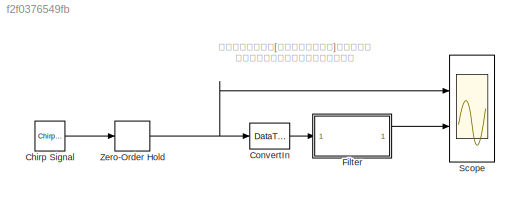
MODEL slx_f2f0376549fb
KIND model
CONFIG AbsTol = auto
CONFIG FixedStep = auto
CONFIG MaxStep = auto
CONFIG MinStep = auto
CONFIG PreLoadFcn = [num,den] = butter(1,0.3);
CONFIG RelTol = 1e-3
CONFIG SampleTimeConstraint = Unconstrained
CONFIG Solver = FixedStepDiscrete
CONFIG SolverMode = SingleTasking
CONFIG SolverName = FixedStepDiscrete
CONFIG StartTime = 0.0
CONFIG StopTime = 10
BLOCK [Reference] Chirp Signal  REF=simulink/Sources/Chirp Signal
  Ports = [0, 1]
  SourceBlock = simulink/Sources/Chirp Signal
  SourceType = chirp
BLOCK [DataTypeConversion] ConvertIn
  OutDataTypeStr = fixdt(1,16,15)
  RndMeth = Nearest
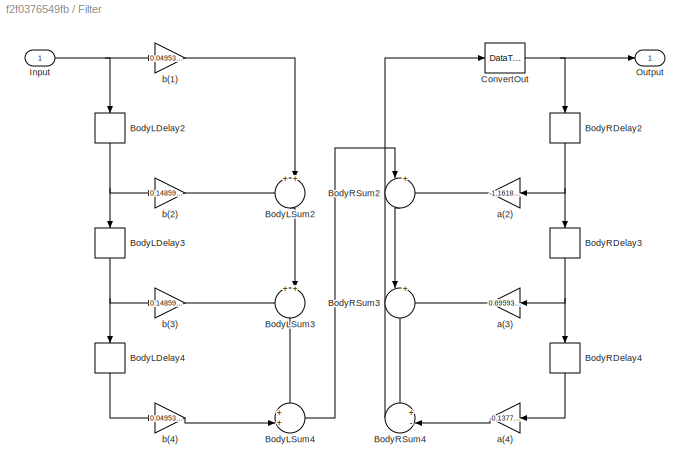
BLOCK [SubSystem] Filter
  Ports = [1, 1]
  RequestExecContextInheritance = off
  Tag = FilterWizardSubSystem
  TreatAsAtomicUnit = on
  UserDataPersistent = on
  Variant = off
BLOCK [Delay] Filter/BodyLDelay2
  DelayLength = 1
  InitialCondition = 0
  InputPortMap = u0
  Ports = [1, 1]
BLOCK [Delay] Filter/BodyLDelay3
  DelayLength = 1
  InitialCondition = 0
  InputPortMap = u0
  Ports = [1, 1]
BLOCK [Delay] Filter/BodyLDelay4
  DelayLength = 1
  InitialCondition = 0
  InputPortMap = u0
  Ports = [1, 1]
BLOCK [Sum] Filter/BodyLSum2
  AccumDataTypeStr = fixdt(1,40,32)
  IconShape = round
  InputSameDT = off
  Inputs = ++|
  OutDataTypeStr = fixdt(1,40,32)
  Ports = [2, 1]
  RndMeth = Convergent
  SaturateOnIntegerOverflow = off
BLOCK [Sum] Filter/BodyLSum3
  AccumDataTypeStr = fixdt(1,40,32)
  IconShape = round
  InputSameDT = off
  Inputs = ++|
  OutDataTypeStr = fixdt(1,40,32)
  Ports = [2, 1]
  RndMeth = Convergent
  SaturateOnIntegerOverflow = off
BLOCK [Sum] Filter/BodyLSum4
  AccumDataTypeStr = fixdt(1,40,32)
  IconShape = round
  InputSameDT = off
  Inputs = ++|
  OutDataTypeStr = fixdt(1,40,32)
  Ports = [2, 1]
  RndMeth = Convergent
  SaturateOnIntegerOverflow = off
BLOCK [Delay] Filter/BodyRDelay2
  DelayLength = 1
  InitialCondition = 0
  InputPortMap = u0
  Ports = [1, 1]
BLOCK [Delay] Filter/BodyRDelay3
  DelayLength = 1
  InitialCondition = 0
  InputPortMap = u0
  Ports = [1, 1]
BLOCK [Delay] Filter/BodyRDelay4
  DelayLength = 1
  InitialCondition = 0
  InputPortMap = u0
  Ports = [1, 1]
BLOCK [Sum] Filter/BodyRSum2
  AccumDataTypeStr = fixdt(1,40,32)
  IconShape = round
  InputSameDT = off
  Inputs = |+-
  OutDataTypeStr = fixdt(1,40,32)
  Ports = [2, 1]
  RndMeth = Convergent
  SaturateOnIntegerOverflow = off
BLOCK [Sum] Filter/BodyRSum3
  AccumDataTypeStr = fixdt(1,40,32)
  IconShape = round
  InputSameDT = off
  Inputs = |+-
  OutDataTypeStr = fixdt(1,40,32)
  Ports = [2, 1]
  RndMeth = Convergent
  SaturateOnIntegerOverflow = off
BLOCK [Sum] Filter/BodyRSum4
  AccumDataTypeStr = fixdt(1,40,32)
  IconShape = round
  InputSameDT = off
  Inputs = +-|
  OutDataTypeStr = fixdt(1,40,32)
  Ports = [2, 1]
  RndMeth = Convergent
  SaturateOnIntegerOverflow = off
BLOCK [DataTypeConversion] Filter/ConvertOut
  OutDataTypeStr = fixdt(1,16,14)
  RndMeth = Convergent
  SaturateOnIntegerOverflow = off
BLOCK [Inport] Filter/Input
  IconDisplay = Port number
BLOCK [Outport] Filter/Output
  IconDisplay = Port number
BLOCK [Gain] Filter/a(2)
  Gain = -1.161865234375
  OutDataTypeStr = fixdt(1,32,32)
  ParamDataTypeStr = fixdt(1,16,14)
  RndMeth = Convergent
  SaturateOnIntegerOverflow = off
BLOCK [Gain] Filter/a(3)
  Gain = 0.6959361843764782
  OutDataTypeStr = fixdt(1,32,32)
  ParamDataTypeStr = fixdt(1,16,14)
  RndMeth = Convergent
  SaturateOnIntegerOverflow = off
BLOCK [Gain] Filter/a(4)
  Gain = -0.1377570666372776
  OutDataTypeStr = fixdt(1,32,32)
  ParamDataTypeStr = fixdt(1,16,14)
  RndMeth = Convergent
  SaturateOnIntegerOverflow = off
BLOCK [Gain] Filter/b(1)
  Gain = 0.049531845608726144
  OutDataTypeStr = fixdt(1,32,32)
  ParamDataTypeStr = fixdt(1,16,17)
  RndMeth = Convergent
  SaturateOnIntegerOverflow = off
BLOCK [Gain] Filter/b(2)
  Gain = 0.14859553682617843
  OutDataTypeStr = fixdt(1,32,32)
  ParamDataTypeStr = fixdt(1,16,17)
  RndMeth = Convergent
  SaturateOnIntegerOverflow = off
BLOCK [Gain] Filter/b(3)
  Gain = 0.14859553682617843
  OutDataTypeStr = fixdt(1,32,32)
  ParamDataTypeStr = fixdt(1,16,17)
  RndMeth = Convergent
  SaturateOnIntegerOverflow = off
BLOCK [Gain] Filter/b(4)
  Gain = 0.049531845608726144
  OutDataTypeStr = fixdt(1,32,32)
  ParamDataTypeStr = fixdt(1,16,17)
  RndMeth = Convergent
  SaturateOnIntegerOverflow = off
BLOCK [Scope] Scope
  NumInputPorts = 2
  Ports = [2]
  ScopeSpecificationString = Simulink.scopes.TimeScopeBlockCfg('CurrentConfiguration', extmgr.ConfigurationSet(extmgr.Configuration('Core','General UI',true),extmgr.Configuration('Core','Source UI',true),extmgr.Configuration('Sources','WiredSimulink',true,'DataLoggingSaveFormat','StructureWithTime','DataLoggingDecimation','1','DataLoggingDecimateData',true),extmgr.Configuration('Visuals','Time Domain',true,'SerializedDisplays...<+2377ch>
BLOCK [ZeroOrderHold] Zero-Order Hold
  SampleTime = 1/1000
ANNOTATION (root): ツールメニューの[固定小数点ツール]を起動して オートケーリングを実施して下さい。
LINE Chirp Signal:1 -> Zero-Order Hold:1
LINE ConvertIn:1 -> Filter:1
NET Filter/BodyLDelay2:1 -> Filter/BodyLDelay3:1, Filter/b(2):1
NET Filter/BodyLDelay3:1 -> Filter/BodyLDelay4:1, Filter/b(3):1
LINE Filter/BodyLDelay4:1 -> Filter/b(4):1
LINE Filter/BodyLSum2:1 -> Filter/BodyLSum3:2
LINE Filter/BodyLSum3:1 -> Filter/BodyLSum4:1
LINE Filter/BodyLSum4:1 -> Filter/BodyRSum2:1
NET Filter/BodyRDelay2:1 -> Filter/BodyRDelay3:1, Filter/a(2):1
NET Filter/BodyRDelay3:1 -> Filter/BodyRDelay4:1, Filter/a(3):1
LINE Filter/BodyRDelay4:1 -> Filter/a(4):1
LINE Filter/BodyRSum2:1 -> Filter/BodyRSum3:1
LINE Filter/BodyRSum3:1 -> Filter/BodyRSum4:1
LINE Filter/BodyRSum4:1 -> Filter/ConvertOut:1
NET Filter/ConvertOut:1 -> Filter/BodyRDelay2:1, Filter/Output:1
NET Filter/Input:1 -> Filter/BodyLDelay2:1, Filter/b(1):1
LINE Filter/a(2):1 -> Filter/BodyRSum2:2
LINE Filter/a(3):1 -> Filter/BodyRSum3:2
LINE Filter/a(4):1 -> Filter/BodyRSum4:2
LINE Filter/b(1):1 -> Filter/BodyLSum2:2
LINE Filter/b(2):1 -> Filter/BodyLSum2:1
LINE Filter/b(3):1 -> Filter/BodyLSum3:1
LINE Filter/b(4):1 -> Filter/BodyLSum4:2
LINE Filter:1 -> Scope:2
NET Zero-Order Hold:1 -> ConvertIn:1, Scope:1
note: NET lines group one-source signal fan-out (src -> all destinations, sorted); 1:1 wires keep LINE
